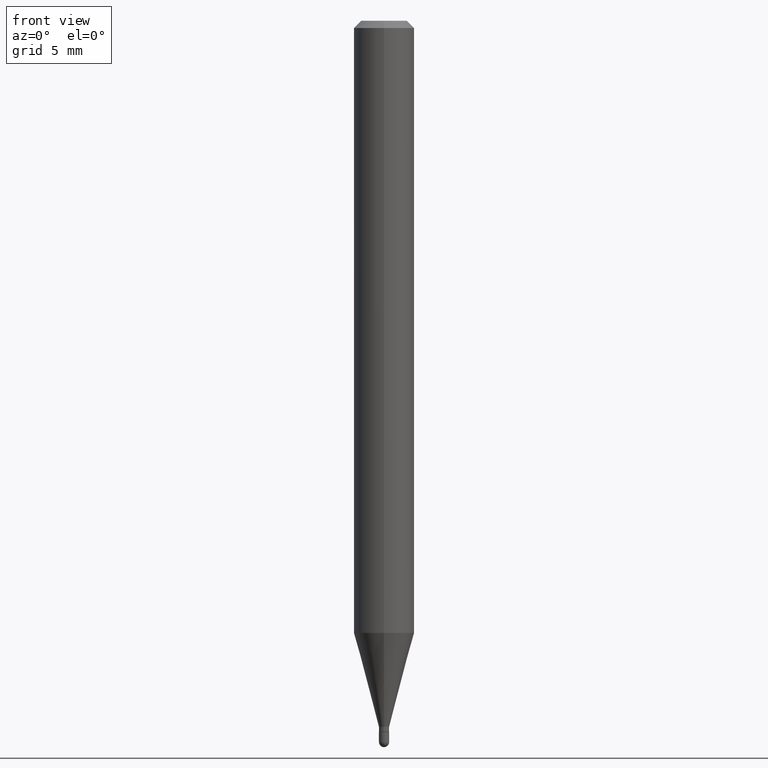
[diagram: clean part render]
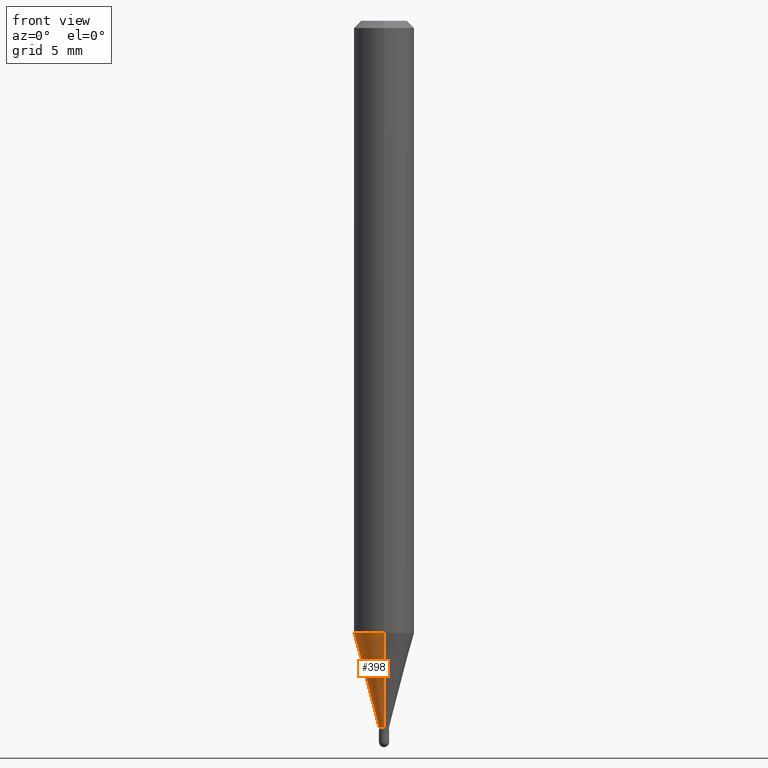
[diagram: same view with one face highlighted and labeled with its STEP entity id]
A machine part, front view. The second image highlights one B-rep face of the part: STEP entity #398.
In plain terms, the highlighted conical surface has half-angle 15 deg.
Its self-contained STEP definition (entity closure, byte-faithful):
#10 = DIRECTION ( 'NONE',  ( -2.445454255719101212E-29, 3.491502175938669574E-15, 1.000000000000000000 ) ) ;
#39 = DIRECTION ( 'NONE',  ( -2.445454255719101212E-29, 3.491502175938669574E-15, 1.000000000000000000 ) ) ;
#41 = CARTESIAN_POINT ( 'NONE',  ( 7.460698725484561614E-17, 0.01049999999999483465, -1.458000000000000185 ) ) ;
#48 = VERTEX_POINT ( 'NONE', #242 ) ;
#49 = DIRECTION ( 'NONE',  ( -6.982962677686266711E-15, -1.000000000000000000, 0.000000000000000000 ) ) ;
#50 = CIRCLE ( 'NONE', #307, 0.06250000000000000000 ) ;
#64 = CONICAL_SURFACE ( 'NONE', #135, 0.01049999999999992432, 0.2617993877991504625 ) ;
#67 = CIRCLE ( 'NONE', #414, 0.01049999999999992432 ) ;
#79 = DIRECTION ( 'NONE',  ( -6.982962677686265922E-15, -1.000000000000000000, 4.370956789862821150E-15 ) ) ;
#135 = AXIS2_PLACEMENT_3D ( 'NONE', #367, #212, #49 ) ;
#147 = ORIENTED_EDGE ( 'NONE', *, *, #412, .T. ) ;
#161 = VERTEX_POINT ( 'NONE', #424 ) ;
#201 = VECTOR ( 'NONE', #312, 39.37007874015748854 ) ;
#207 = FACE_OUTER_BOUND ( 'NONE', #284, .T. ) ;
#212 = DIRECTION ( 'NONE',  ( -2.445454255719101212E-29, 3.491502175938669574E-15, 1.000000000000000000 ) ) ;
#221 = VERTEX_POINT ( 'NONE', #276 ) ;
#227 = EDGE_CURVE ( 'NONE', #48, #221, #50, .T. ) ;
#233 = VERTEX_POINT ( 'NONE', #238 ) ;
#238 = CARTESIAN_POINT ( 'NONE',  ( 2.593480985524697824E-16, 0.01049999999999483465, -1.458000000000000185 ) ) ;
#242 = CARTESIAN_POINT ( 'NONE',  ( 4.440892098500932831E-16, 0.06249999999999556605, -1.263933358006419372 ) ) ;
#246 = CARTESIAN_POINT ( 'NONE',  ( 3.090891209282131815E-29, -4.413026069720881055E-15, -1.263933358006419150 ) ) ;
#255 = LINE ( 'NONE', #293, #430 ) ;
#276 = CARTESIAN_POINT ( 'NONE',  ( -4.364351673553607559E-16, -0.06250000000000441314, -1.263933358006418706 ) ) ;
#284 = EDGE_LOOP ( 'NONE', ( #417, #147, #487, #390 ) ) ;
#286 = EDGE_CURVE ( 'NONE', #233, #48, #401, .T. ) ;
#288 = DIRECTION ( 'NONE',  ( -6.982962677686266711E-15, -1.000000000000000000, 0.000000000000000000 ) ) ;
#293 = CARTESIAN_POINT ( 'NONE',  ( -7.332110811566961097E-17, -0.01050000000000501574, -1.458000000000000185 ) ) ;
#307 = AXIS2_PLACEMENT_3D ( 'NONE', #246, #39, #79 ) ;
#312 = DIRECTION ( 'NONE',  ( 1.839019923739601499E-15, 0.2588190451025251249, 0.9659258262890670910 ) ) ;
#367 = CARTESIAN_POINT ( 'NONE',  ( 3.565472304838449860E-29, -5.090610172518580504E-15, -1.458000000000000185 ) ) ;
#390 = ORIENTED_EDGE ( 'NONE', *, *, #227, .F. ) ;
#398 = ADVANCED_FACE ( 'NONE', ( #207 ), #64, .T. ) ;
#401 = LINE ( 'NONE', #41, #201 ) ;
#412 = EDGE_CURVE ( 'NONE', #233, #161, #67, .T. ) ;
#413 = CARTESIAN_POINT ( 'NONE',  ( 3.565472304838449860E-29, -5.090610172518580504E-15, -1.458000000000000185 ) ) ;
#414 = AXIS2_PLACEMENT_3D ( 'NONE', #413, #10, #288 ) ;
#416 = DIRECTION ( 'NONE',  ( -1.807323732225331323E-15, -0.2588190451025183525, 0.9659258262890689783 ) ) ;
#417 = ORIENTED_EDGE ( 'NONE', *, *, #286, .F. ) ;
#424 = CARTESIAN_POINT ( 'NONE',  ( -7.332110811566961097E-17, -0.01050000000000501574, -1.458000000000000185 ) ) ;
#430 = VECTOR ( 'NONE', #416, 39.37007874015748854 ) ;
#486 = EDGE_CURVE ( 'NONE', #161, #221, #255, .T. ) ;
#487 = ORIENTED_EDGE ( 'NONE', *, *, #486, .T. ) ;